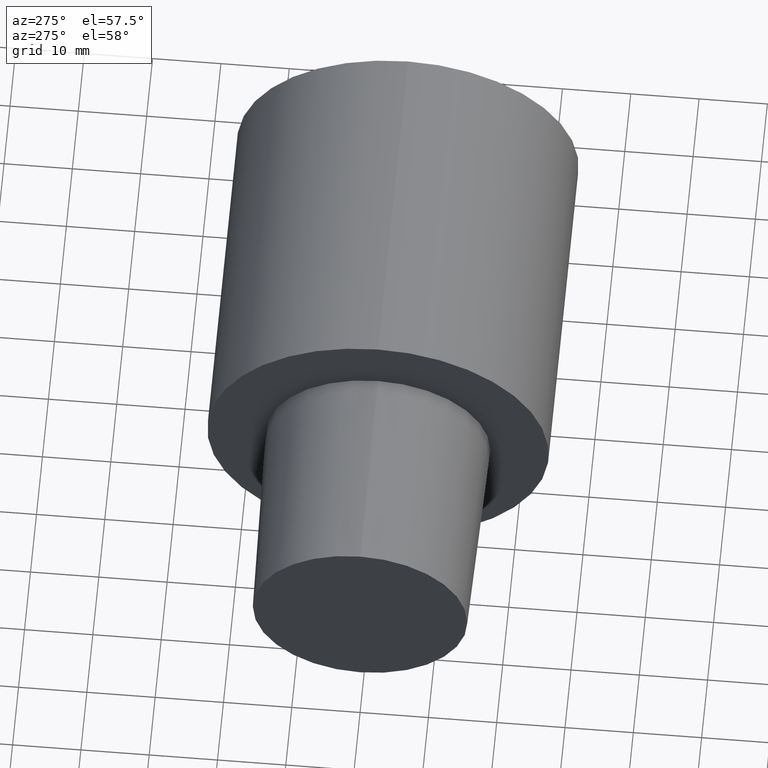
[diagram: clean part render]
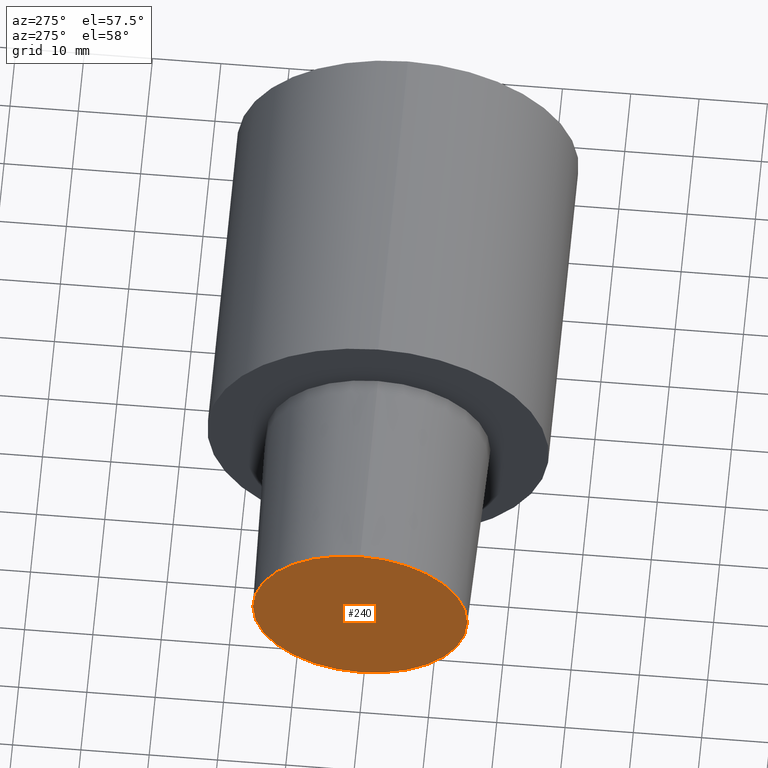
[diagram: same view with one face highlighted and labeled with its STEP entity id]
A machine part, auxiliary view. The second image highlights one B-rep face of the part: STEP entity #240.
In plain terms, the highlighted planar face has unit normal (1, 0, 0).
Its self-contained STEP definition (entity closure, byte-faithful):
#6 = ORIENTED_EDGE ( 'NONE', *, *, #42, .T. ) ;
#14 = EDGE_LOOP ( 'NONE', ( #6, #246 ) ) ;
#15 = DIRECTION ( 'NONE',  ( -1.000000000000000000, 0.000000000000000000, 0.000000000000000000 ) ) ;
#18 = PLANE ( 'NONE',  #159 ) ;
#26 = AXIS2_PLACEMENT_3D ( 'NONE', #229, #192, #49 ) ;
#42 = EDGE_CURVE ( 'NONE', #207, #166, #109, .T. ) ;
#49 = DIRECTION ( 'NONE',  ( 0.000000000000000000, 0.000000000000000000, 1.000000000000000000 ) ) ;
#58 = CARTESIAN_POINT ( 'NONE',  ( -29.99999996940000102, 0.000000000000000000, -15.70494056296217700 ) ) ;
#91 = CARTESIAN_POINT ( 'NONE',  ( -29.99999996940000102, 0.000000000000000000, 0.000000000000000000 ) ) ;
#98 = EDGE_CURVE ( 'NONE', #166, #207, #235, .T. ) ;
#109 = CIRCLE ( 'NONE', #221, 15.70494056296217700 ) ;
#115 = DIRECTION ( 'NONE',  ( 0.000000000000000000, 1.000000000000000000, 0.000000000000000000 ) ) ;
#141 = FACE_OUTER_BOUND ( 'NONE', #14, .T. ) ;
#159 = AXIS2_PLACEMENT_3D ( 'NONE', #161, #203, #115 ) ;
#160 = CARTESIAN_POINT ( 'NONE',  ( -29.99999996940000102, 1.969228816626358703E-15, 15.70494056296217700 ) ) ;
#161 = CARTESIAN_POINT ( 'NONE',  ( -29.99999996940000102, 15.70494056296217700, 0.000000000000000000 ) ) ;
#166 = VERTEX_POINT ( 'NONE', #160 ) ;
#192 = DIRECTION ( 'NONE',  ( -1.000000000000000000, 0.000000000000000000, 0.000000000000000000 ) ) ;
#203 = DIRECTION ( 'NONE',  ( 1.000000000000000000, 0.000000000000000000, 0.000000000000000000 ) ) ;
#207 = VERTEX_POINT ( 'NONE', #58 ) ;
#221 = AXIS2_PLACEMENT_3D ( 'NONE', #91, #15, #251 ) ;
#229 = CARTESIAN_POINT ( 'NONE',  ( -29.99999996940000102, 0.000000000000000000, 0.000000000000000000 ) ) ;
#235 = CIRCLE ( 'NONE', #26, 15.70494056296217700 ) ;
#240 = ADVANCED_FACE ( 'NONE', ( #141 ), #18, .F. ) ;
#246 = ORIENTED_EDGE ( 'NONE', *, *, #98, .T. ) ;
#251 = DIRECTION ( 'NONE',  ( 0.000000000000000000, 0.000000000000000000, 1.000000000000000000 ) ) ;